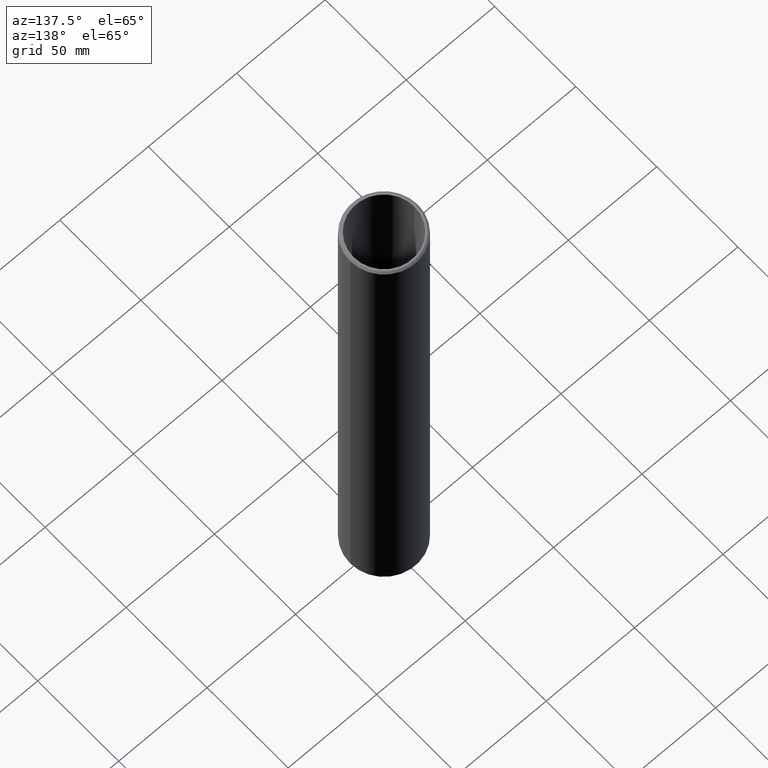
[diagram: clean part render]
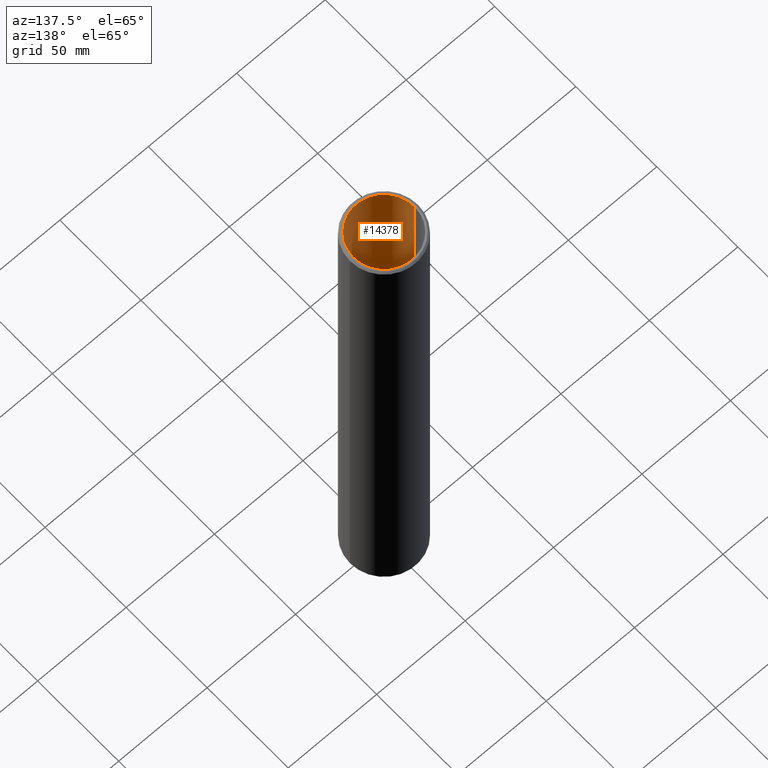
[diagram: same view with one face highlighted and labeled with its STEP entity id]
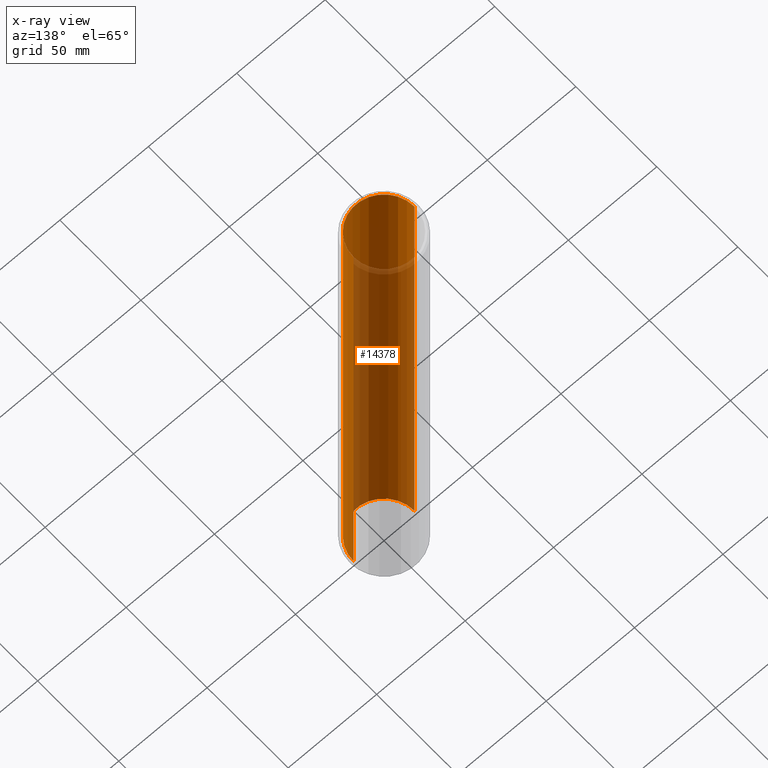
[diagram: x-ray of the same camera — body ghosted, the highlighted face saturated]
A machine part, auxiliary view. The second image highlights one B-rep face of the part: STEP entity #14378.
The next image is the same camera in x-ray: the body ghosted, the highlighted face saturated — about 65% of this face is hidden behind the body in this view.
In plain terms, the highlighted cylindrical surface (partial cylindrical patch) has radius 17.2 mm, axis along (-0, -0, -1).
Its self-contained STEP definition (entity closure, byte-faithful):
#10 = VERTEX_POINT ( 'NONE', #2546 ) ;
#23 = ORIENTED_EDGE ( 'NONE', *, *, #6961, .T. ) ;
#45 = ORIENTED_EDGE ( 'NONE', *, *, #8505, .F. ) ;
#59 = LINE ( 'NONE', #1891, #5661 ) ;
#66 = CARTESIAN_POINT ( 'NONE',  ( -17.19999999999999900, -6.751777973111649000E-013, -1.884475893939244800 ) ) ;
#96 = EDGE_CURVE ( 'NONE', #5512, #9341, #8298, .T. ) ;
#126 = VERTEX_POINT ( 'NONE', #11894 ) ;
#132 = CARTESIAN_POINT ( 'NONE',  ( -17.19999999999999900, 0.0000000000000000000, 6.962272970085531500 ) ) ;
#164 = B_SPLINE_CURVE_WITH_KNOTS ( 'NONE', 3,
 ( #11460, #3708, #4714, #6995 ),
 .UNSPECIFIED., .F., .F.,
 ( 4, 4 ),
 ( 0.0000000000000000000, 0.0001645194095886679000 ),
 .UNSPECIFIED. ) ;
#171 = VERTEX_POINT ( 'NONE', #5241 ) ;
#199 = ORIENTED_EDGE ( 'NONE', *, *, #13242, .T. ) ;
#201 = VECTOR ( 'NONE', #12343, 1000.000000000000000 ) ;
#247 = CARTESIAN_POINT ( 'NONE',  ( -17.19999999999999200, 5.573428617934421100E-012, 8.000412471161414600 ) ) ;
#287 = CARTESIAN_POINT ( 'NONE',  ( -17.19999999999999900, 0.0000000000000000000, 2.264222756410313700 ) ) ;
#297 = CARTESIAN_POINT ( 'NONE',  ( -17.19999285777112500, -0.01572333097396916300, 7.911512519285377500 ) ) ;
#328 = VERTEX_POINT ( 'NONE', #4259 ) ;
#347 = CARTESIAN_POINT ( 'NONE',  ( -17.20000000000000600, -0.02309534533612205000, -1.934273620241504100 ) ) ;
#353 = VERTEX_POINT ( 'NONE', #14221 ) ;
#370 = CARTESIAN_POINT ( 'NONE',  ( -17.19996655141567400, -0.03392094017094016800, -2.045061682024499100 ) ) ;
#373 = VECTOR ( 'NONE', #2807, 1000.000000000000000 ) ;
#408 = EDGE_CURVE ( 'NONE', #5282, #14198, #565, .T. ) ;
#427 = VERTEX_POINT ( 'NONE', #5486 ) ;
#440 = VERTEX_POINT ( 'NONE', #66 ) ;
#460 = VERTEX_POINT ( 'NONE', #13398 ) ;
#473 = EDGE_CURVE ( 'NONE', #5150, #3486, #1433, .T. ) ;
#527 = CARTESIAN_POINT ( 'NONE',  ( -17.19999999999999900, 0.0000000000000000000, 6.419537927350489800 ) ) ;
#529 = CARTESIAN_POINT ( 'NONE',  ( -17.19999999999999200, -4.678120616038137400E-014, 7.728009957598170700 ) ) ;
#562 = VECTOR ( 'NONE', #14282, 1000.000000000000000 ) ;
#565 = CIRCLE ( 'NONE', #4294, 17.19999999999999900 ) ;
#568 = VERTEX_POINT ( 'NONE', #12837 ) ;
#587 = LINE ( 'NONE', #12606, #12076 ) ;
#591 = CARTESIAN_POINT ( 'NONE',  ( -17.19999163786001600, -0.01696047008547008800, 9.444066756810947500 ) ) ;
#618 = CARTESIAN_POINT ( 'NONE',  ( -17.19996815175935000, -0.03310946921701064800, -9.427729188836478300 ) ) ;
#640 = CIRCLE ( 'NONE', #10967, 17.19999999999999900 ) ;
#650 = CARTESIAN_POINT ( 'NONE',  ( -17.19999999999999900, -0.02204698858159575800, -10.50082307081111200 ) ) ;
#661 = CARTESIAN_POINT ( 'NONE',  ( -17.19999999999999900, 0.0000000000000000000, 150.0000000000000000 ) ) ;
#742 = CARTESIAN_POINT ( 'NONE',  ( -17.19996839924588300, -0.03298397858883979300, -9.316524929275726000 ) ) ;
#838 = EDGE_CURVE ( 'NONE', #14198, #8005, #4734, .T. ) ;
#853 = VERTEX_POINT ( 'NONE', #8999 ) ;
#889 = CARTESIAN_POINT ( 'NONE',  ( -17.19999999999999900, 0.0000000000000000000, 150.0000000000000000 ) ) ;
#896 = DIRECTION ( 'NONE',  ( 0.0000000000000000000, 0.0000000000000000000, 1.000000000000000000 ) ) ;
#898 = CARTESIAN_POINT ( 'NONE',  ( -17.19999999999999900, 0.0000000000000000000, 6.300814636752194900 ) ) ;
#912 = EDGE_CURVE ( 'NONE', #9768, #12924, #1418, .T. ) ;
#967 = VERTEX_POINT ( 'NONE', #2680 ) ;
#1019 = EDGE_CURVE ( 'NONE', #7067, #4531, #4635, .T. ) ;
#1057 = ORIENTED_EDGE ( 'NONE', *, *, #9153, .T. ) ;
#1081 = CARTESIAN_POINT ( 'NONE',  ( -17.19999999999999900, 0.0000000000000000000, 2.993522970085538100 ) ) ;
#1145 = CARTESIAN_POINT ( 'NONE',  ( -17.19999999999999900, 0.0000000000000000000, 150.0000000000000000 ) ) ;
#1169 = ORIENTED_EDGE ( 'NONE', *, *, #14397, .T. ) ;
#1256 = CARTESIAN_POINT ( 'NONE',  ( -17.19999999999999900, 0.0000000000000000000, 150.0000000000000000 ) ) ;
#1268 = LINE ( 'NONE', #8189, #11001 ) ;
#1277 = VECTOR ( 'NONE', #4909, 1000.000000000000000 ) ;
#1342 = VERTEX_POINT ( 'NONE', #12037 ) ;
#1351 = ORIENTED_EDGE ( 'NONE', *, *, #13579, .F. ) ;
#1357 = CARTESIAN_POINT ( 'NONE',  ( -17.19999999999999900, 0.0000000000000000000, 150.0000000000000000 ) ) ;
#1385 = EDGE_CURVE ( 'NONE', #4673, #171, #13055, .T. ) ;
#1418 = LINE ( 'NONE', #3356, #7682 ) ;
#1433 = LINE ( 'NONE', #1256, #12219 ) ;
#1437 = ORIENTED_EDGE ( 'NONE', *, *, #6624, .T. ) ;
#1445 = LINE ( 'NONE', #661, #1277 ) ;
#1467 = LINE ( 'NONE', #10215, #11215 ) ;
#1474 = EDGE_CURVE ( 'NONE', #126, #3194, #11140, .T. ) ;
#1479 = B_SPLINE_CURVE_WITH_KNOTS ( 'NONE', 3,
 ( #9210, #5908, #347, #4634 ),
 .UNSPECIFIED., .F., .F.,
 ( 4, 4 ),
 ( 0.0000000000000000000, 0.0001645194095886683400 ),
 .UNSPECIFIED. ) ;
#1495 = EDGE_CURVE ( 'NONE', #328, #9597, #11339, .T. ) ;
#1500 = B_SPLINE_CURVE_WITH_KNOTS ( 'NONE', 3,
 ( #6689, #9988, #3185, #5417 ),
 .UNSPECIFIED., .F., .F.,
 ( 4, 4 ),
 ( 0.0000000000000000000, 0.0001713056969255015600 ),
 .UNSPECIFIED. ) ;
#1521 = CARTESIAN_POINT ( 'NONE',  ( -17.19999285777112500, -0.01572333097396876700, 4.943430254328143600 ) ) ;
#1569 = ORIENTED_EDGE ( 'NONE', *, *, #8003, .T. ) ;
#1574 = EDGE_CURVE ( 'NONE', #2214, #5574, #8381, .T. ) ;
#1583 = CARTESIAN_POINT ( 'NONE',  ( -17.19999999999999900, 0.0000000000000000000, 150.0000000000000000 ) ) ;
#1597 = EDGE_CURVE ( 'NONE', #11983, #171, #14335, .T. ) ;
#1623 = CARTESIAN_POINT ( 'NONE',  ( -17.19996655141567400, -0.03392094017094016800, -10.38961296407583900 ) ) ;
#1634 = CARTESIAN_POINT ( 'NONE',  ( -17.19999999999999900, 0.0000000000000000000, -150.0000000000000000 ) ) ;
#1650 = LINE ( 'NONE', #1583, #2352 ) ;
#1753 = ORIENTED_EDGE ( 'NONE', *, *, #7246, .F. ) ;
#1764 = EDGE_CURVE ( 'NONE', #9909, #10235, #10687, .T. ) ;
#1778 = DIRECTION ( 'NONE',  ( -0.0000000000000000000, -0.0000000000000000000, -1.000000000000000000 ) ) ;
#1783 = CARTESIAN_POINT ( 'NONE',  ( -17.19999271178686200, -0.01587137687797412300, 7.819208660451585600 ) ) ;
#1826 = ORIENTED_EDGE ( 'NONE', *, *, #408, .T. ) ;
#1891 = CARTESIAN_POINT ( 'NONE',  ( -17.19999999999999900, 0.0000000000000000000, 150.0000000000000000 ) ) ;
#2000 = CARTESIAN_POINT ( 'NONE',  ( -17.19996655141567400, -0.03392094017094016800, -9.371984758947624200 ) ) ;
#2049 = EDGE_CURVE ( 'NONE', #1342, #12550, #12368, .T. ) ;
#2131 = LINE ( 'NONE', #12830, #11378 ) ;
#2196 = ORIENTED_EDGE ( 'NONE', *, *, #5136, .F. ) ;
#2214 = VERTEX_POINT ( 'NONE', #8553 ) ;
#2239 = CARTESIAN_POINT ( 'NONE',  ( -17.19996655141567400, -0.03392094017094016800, -0.009805271768084589800 ) ) ;
#2268 = CARTESIAN_POINT ( 'NONE',  ( -17.19999999999999900, 0.0000000000000000000, 3.383613782051345400 ) ) ;
#2316 = VERTEX_POINT ( 'NONE', #2872 ) ;
#2352 = VECTOR ( 'NONE', #6216, 1000.000000000000000 ) ;
#2367 = B_SPLINE_CURVE_WITH_KNOTS ( 'NONE', 3,
 ( #529, #3820, #1783, #12687 ),
 .UNSPECIFIED., .F., .F.,
 ( 4, 4 ),
 ( 0.0003122496410272481700, 0.0004517219168809325400 ),
 .UNSPECIFIED. ) ;
#2461 = B_SPLINE_CURVE_WITH_KNOTS ( 'NONE', 3,
 ( #11884, #11835, #8690, #2906 ),
 .UNSPECIFIED., .F., .F.,
 ( 4, 4 ),
 ( 0.0000000000000000000, 0.0001866059247257123000 ),
 .UNSPECIFIED. ) ;
#2465 = LINE ( 'NONE', #1357, #4923 ) ;
#2475 = VECTOR ( 'NONE', #6246, 1000.000000000000000 ) ;
#2481 = VERTEX_POINT ( 'NONE', #14316 ) ;
#2482 = CARTESIAN_POINT ( 'NONE',  ( -17.20000000000000600, -6.751540803886417800E-013, -6.565565637529021900 ) ) ;
#2493 = ORIENTED_EDGE ( 'NONE', *, *, #13324, .T. ) ;
#2494 = VECTOR ( 'NONE', #13826, 1000.000000000000000 ) ;
#2507 = EDGE_CURVE ( 'NONE', #460, #3353, #11498, .T. ) ;
#2546 = CARTESIAN_POINT ( 'NONE',  ( -17.19999999999999900, 0.0000000000000000000, -6.012486645299103000 ) ) ;
#2549 = CARTESIAN_POINT ( 'NONE',  ( -17.19999999999999900, 0.0000000000000000000, 150.0000000000000000 ) ) ;
#2557 = VERTEX_POINT ( 'NONE', #12337 ) ;
#2619 = VECTOR ( 'NONE', #9845, 1000.000000000000000 ) ;
#2662 = VECTOR ( 'NONE', #7933, 1000.000000000000000 ) ;
#2666 = EDGE_CURVE ( 'NONE', #13956, #7025, #8539, .T. ) ;
#2668 = CARTESIAN_POINT ( 'NONE',  ( -17.19999999999999900, 0.0000000000000000000, 150.0000000000000000 ) ) ;
#2680 = CARTESIAN_POINT ( 'NONE',  ( -17.19999999999999200, 5.585038898542435800E-012, 5.032330206204210100 ) ) ;
#2683 = CARTESIAN_POINT ( 'NONE',  ( -17.19996655141567400, -0.03392094017094016800, -6.726151425614275100 ) ) ;
#2693 = LINE ( 'NONE', #4379, #12617 ) ;
#2701 = ORIENTED_EDGE ( 'NONE', *, *, #1764, .T. ) ;
#2717 = CARTESIAN_POINT ( 'NONE',  ( -17.19996655141567400, -0.03392094017094016800, -10.38961296407583900 ) ) ;
#2738 = CARTESIAN_POINT ( 'NONE',  ( -17.19999999999999900, 0.0000000000000000000, 150.0000000000000000 ) ) ;
#2807 = DIRECTION ( 'NONE',  ( -0.0000000000000000000, -0.0000000000000000000, -1.000000000000000000 ) ) ;
#2855 = CARTESIAN_POINT ( 'NONE',  ( -17.19999999999999900, -3.163668057994811800E-016, -0.1712283461435425400 ) ) ;
#2861 = VERTEX_POINT ( 'NONE', #6393 ) ;
#2865 = EDGE_CURVE ( 'NONE', #3615, #6061, #1500, .T. ) ;
#2869 = VECTOR ( 'NONE', #4435, 1000.000000000000000 ) ;
#2872 = CARTESIAN_POINT ( 'NONE',  ( -17.19999999999999900, 0.0000000000000000000, 2.145499465812022800 ) ) ;
#2906 = CARTESIAN_POINT ( 'NONE',  ( -17.19999999999999900, -5.264479173774927500E-014, -8.169909270066655800 ) ) ;
#2911 = VERTEX_POINT ( 'NONE', #10422 ) ;
#3115 = EDGE_CURVE ( 'NONE', #353, #2861, #8526, .T. ) ;
#3147 = DIRECTION ( 'NONE',  ( -0.0000000000000000000, -0.0000000000000000000, -1.000000000000000000 ) ) ;
#3168 = CARTESIAN_POINT ( 'NONE',  ( -17.19999999999999900, -3.163668057994811800E-016, -0.1712283461435425400 ) ) ;
#3185 = CARTESIAN_POINT ( 'NONE',  ( -17.20000000000001000, -0.02343688045399171600, 1.144817360246057600 ) ) ;
#3194 = VERTEX_POINT ( 'NONE', #5750 ) ;
#3253 = DIRECTION ( 'NONE',  ( -0.0000000000000000000, -0.0000000000000000000, -1.000000000000000000 ) ) ;
#3295 = DIRECTION ( 'NONE',  ( -0.0000000000000000000, -0.0000000000000000000, -1.000000000000000000 ) ) ;
#3312 = CARTESIAN_POINT ( 'NONE',  ( -17.19999999999999900, -0.02326279581355656500, -8.480818429887129600 ) ) ;
#3353 = VERTEX_POINT ( 'NONE', #3765 ) ;
#3356 = CARTESIAN_POINT ( 'NONE',  ( -17.19999999999999900, 0.0000000000000000000, 150.0000000000000000 ) ) ;
#3416 = CARTESIAN_POINT ( 'NONE',  ( -17.19999999999999900, 0.0000000000000000000, 10.74445779914534600 ) ) ;
#3486 = VERTEX_POINT ( 'NONE', #10820 ) ;
#3506 = LINE ( 'NONE', #12153, #562 ) ;
#3511 = ORIENTED_EDGE ( 'NONE', *, *, #12418, .F. ) ;
#3615 = VERTEX_POINT ( 'NONE', #11023 ) ;
#3696 = LINE ( 'NONE', #8775, #13783 ) ;
#3708 = CARTESIAN_POINT ( 'NONE',  ( -17.19996839924588300, -0.03298397858883977300, -6.670691595942378700 ) ) ;
#3756 = CARTESIAN_POINT ( 'NONE',  ( -17.19999999999999900, 0.0000000000000000000, 150.0000000000000000 ) ) ;
#3765 = CARTESIAN_POINT ( 'NONE',  ( -17.19999163786001600, -0.01696047008547008400, 4.897865751869723300 ) ) ;
#3820 = CARTESIAN_POINT ( 'NONE',  ( -17.19999999999998900, -0.01155977357769780900, 7.772905841796536200 ) ) ;
#3854 = CARTESIAN_POINT ( 'NONE',  ( -17.19996815175934300, -0.03310946921701049500, -10.44535739396469700 ) ) ;
#3927 = ORIENTED_EDGE ( 'NONE', *, *, #14264, .T. ) ;
#3931 = ORIENTED_EDGE ( 'NONE', *, *, #96, .T. ) ;
#3934 = CARTESIAN_POINT ( 'NONE',  ( -17.19999274129229900, -0.01584145475481876800, 9.492002433967787300 ) ) ;
#3992 = ORIENTED_EDGE ( 'NONE', *, *, #12477, .T. ) ;
#4080 = EDGE_CURVE ( 'NONE', #10, #10356, #11492, .T. ) ;
#4116 = VECTOR ( 'NONE', #4450, 1000.000000000000000 ) ;
#4165 = ORIENTED_EDGE ( 'NONE', *, *, #2666, .T. ) ;
#4259 = CARTESIAN_POINT ( 'NONE',  ( -17.19999999999999900, 0.0000000000000000000, 7.352363782051341400 ) ) ;
#4279 = CARTESIAN_POINT ( 'NONE',  ( -17.19999999999999900, 0.0000000000000000000, 4.503004807692372300 ) ) ;
#4294 = AXIS2_PLACEMENT_3D ( 'NONE', #4509, #12245, #10203 ) ;
#4302 = LINE ( 'NONE', #10242, #12844 ) ;
#4368 = EDGE_CURVE ( 'NONE', #2557, #12550, #10946, .T. ) ;
#4369 = CARTESIAN_POINT ( 'NONE',  ( -17.19999999999999900, 0.0000000000000000000, 150.0000000000000000 ) ) ;
#4379 = CARTESIAN_POINT ( 'NONE',  ( -17.19999999999999900, 0.0000000000000000000, 150.0000000000000000 ) ) ;
#4408 = CARTESIAN_POINT ( 'NONE',  ( -17.19996655141567400, -0.03392094017094016800, -0.009805271768084589800 ) ) ;
#4435 = DIRECTION ( 'NONE',  ( -0.0000000000000000000, -0.0000000000000000000, -1.000000000000000000 ) ) ;
#4450 = DIRECTION ( 'NONE',  ( 0.0000000000000000000, 0.0000000000000000000, 1.000000000000000000 ) ) ;
#4451 = CARTESIAN_POINT ( 'NONE',  ( -17.19999999999998900, -4.698851747422185800E-014, 4.759927692640924400 ) ) ;
#4505 = CARTESIAN_POINT ( 'NONE',  ( -17.19999271178686200, -0.01587137687797410600, 4.851126395494338400 ) ) ;
#4509 = CARTESIAN_POINT ( 'NONE',  ( 0.0000000000000000000, 0.0000000000000000000, 150.0000000000000000 ) ) ;
#4511 = CARTESIAN_POINT ( 'NONE',  ( -17.19996655141567400, -0.03392094017094016800, -8.353296524439061300 ) ) ;
#4531 = VERTEX_POINT ( 'NONE', #8139 ) ;
#4568 = CARTESIAN_POINT ( 'NONE',  ( -17.19999999999999200, -0.02309534533612236200, 0.1009827900149115100 ) ) ;
#4633 = VERTEX_POINT ( 'NONE', #11904 ) ;
#4634 = CARTESIAN_POINT ( 'NONE',  ( -17.19999999999999900, -6.751777973111649000E-013, -1.884475893939244800 ) ) ;
#4635 = B_SPLINE_CURVE_WITH_KNOTS ( 'NONE', 3,
 ( #4898, #11456, #13763, #370 ),
 .UNSPECIFIED., .F., .F.,
 ( 4, 4 ),
 ( 0.0007601452019977660000, 0.0009231551795491606300 ),
 .UNSPECIFIED. ) ;
#4665 = DIRECTION ( 'NONE',  ( -0.0000000000000000000, -0.0000000000000000000, -1.000000000000000000 ) ) ;
#4673 = VERTEX_POINT ( 'NONE', #9669 ) ;
#4709 = ORIENTED_EDGE ( 'NONE', *, *, #5813, .T. ) ;
#4714 = CARTESIAN_POINT ( 'NONE',  ( -17.20000000000000600, -0.02309534533612032200, -6.615363363831281900 ) ) ;
#4734 = LINE ( 'NONE', #7971, #201 ) ;
#4788 = EDGE_CURVE ( 'NONE', #427, #10723, #9706, .T. ) ;
#4898 = CARTESIAN_POINT ( 'NONE',  ( -17.19999999999999900, -3.521539478209753700E-016, -2.206484756399957400 ) ) ;
#4909 = DIRECTION ( 'NONE',  ( 0.0000000000000000000, 0.0000000000000000000, 1.000000000000000000 ) ) ;
#4923 = VECTOR ( 'NONE', #9012, 1000.000000000000000 ) ;
#4995 = CARTESIAN_POINT ( 'NONE',  ( -17.19999999999999900, 0.0000000000000000000, 150.0000000000000000 ) ) ;
#5051 = ORIENTED_EDGE ( 'NONE', *, *, #4080, .F. ) ;
#5113 = CARTESIAN_POINT ( 'NONE',  ( 17.19999999999999900, 2.106392494533447400E-015, 150.0000000000000000 ) ) ;
#5117 = LINE ( 'NONE', #5944, #2494 ) ;
#5136 = EDGE_CURVE ( 'NONE', #9909, #14195, #6097, .T. ) ;
#5148 = ORIENTED_EDGE ( 'NONE', *, *, #7417, .T. ) ;
#5149 = CARTESIAN_POINT ( 'NONE',  ( -17.19996655141567400, -0.03392094017094016800, -9.371984758947624200 ) ) ;
#5150 = VERTEX_POINT ( 'NONE', #6460 ) ;
#5183 = DIRECTION ( 'NONE',  ( -0.0000000000000000000, -0.0000000000000000000, -1.000000000000000000 ) ) ;
#5230 = ORIENTED_EDGE ( 'NONE', *, *, #6241, .T. ) ;
#5231 = CARTESIAN_POINT ( 'NONE',  ( -17.19999999999999900, -5.252190843292635700E-013, 1.197160463311442800 ) ) ;
#5241 = CARTESIAN_POINT ( 'NONE',  ( -17.19999999999999900, 7.816639736433377600E-012, 9.585322993598554200 ) ) ;
#5255 = DIRECTION ( 'NONE',  ( -0.0000000000000000000, -0.0000000000000000000, -1.000000000000000000 ) ) ;
#5268 = CARTESIAN_POINT ( 'NONE',  ( -17.19999999999999900, 3.287546626530753200E-017, 0.8426784211193761900 ) ) ;
#5282 = VERTEX_POINT ( 'NONE', #11568 ) ;
#5327 = CARTESIAN_POINT ( 'NONE',  ( -17.19996655141567400, -0.03392094017094016800, -9.371984758947624200 ) ) ;
#5338 = ORIENTED_EDGE ( 'NONE', *, *, #13155, .F. ) ;
#5417 = CARTESIAN_POINT ( 'NONE',  ( -17.19999999999999900, -5.252190843292635700E-013, 1.197160463311442800 ) ) ;
#5486 = CARTESIAN_POINT ( 'NONE',  ( -17.19999999999999900, -1.956434349920620200E-015, -8.539573809655815100 ) ) ;
#5505 = VERTEX_POINT ( 'NONE', #12010 ) ;
#5510 = DIRECTION ( 'NONE',  ( -0.0000000000000000000, -0.0000000000000000000, -1.000000000000000000 ) ) ;
#5512 = VERTEX_POINT ( 'NONE', #10980 ) ;
#5574 = VERTEX_POINT ( 'NONE', #2268 ) ;
#5597 = CARTESIAN_POINT ( 'NONE',  ( -17.19999999999999900, 0.0000000000000000000, 4.112913995726552600 ) ) ;
#5608 = VERTEX_POINT ( 'NONE', #5597 ) ;
#5650 = AXIS2_PLACEMENT_3D ( 'NONE', #13505, #12407, #5695 ) ;
#5661 = VECTOR ( 'NONE', #5510, 1000.000000000000000 ) ;
#5695 = DIRECTION ( 'NONE',  ( -1.000000000000000000, 0.0000000000000000000, 0.0000000000000000000 ) ) ;
#5708 = VERTEX_POINT ( 'NONE', #3416 ) ;
#5744 = CARTESIAN_POINT ( 'NONE',  ( -17.19997016515581100, -0.03208855553695756600, -8.416886645584998700 ) ) ;
#5747 = ORIENTED_EDGE ( 'NONE', *, *, #14058, .T. ) ;
#5750 = CARTESIAN_POINT ( 'NONE',  ( -17.20000000000000600, -6.755212691712765200E-013, -10.22902717599058400 ) ) ;
#5786 = CARTESIAN_POINT ( 'NONE',  ( -17.19999999999999900, 0.0000000000000000000, -3.366653311965755800 ) ) ;
#5807 = ORIENTED_EDGE ( 'NONE', *, *, #13284, .T. ) ;
#5813 = EDGE_CURVE ( 'NONE', #10531, #10356, #164, .T. ) ;
#5821 = CARTESIAN_POINT ( 'NONE',  ( 17.19999999999999900, 2.106392494533447400E-015, -150.0000000000000000 ) ) ;
#5908 = CARTESIAN_POINT ( 'NONE',  ( -17.19996839924588300, -0.03298397858883980000, -1.989601852352602200 ) ) ;
#5934 = DIRECTION ( 'NONE',  ( 0.0000000000000000000, 0.0000000000000000000, 1.000000000000000000 ) ) ;
#5944 = CARTESIAN_POINT ( 'NONE',  ( -17.19999999999999900, 0.0000000000000000000, 150.0000000000000000 ) ) ;
#5966 = CARTESIAN_POINT ( 'NONE',  ( -17.19999999999999200, -0.02342409901532157100, 0.9018129734785279600 ) ) ;
#5972 = CARTESIAN_POINT ( 'NONE',  ( -17.20000000000000600, -6.755212691712765200E-013, -10.22902717599058400 ) ) ;
#6004 = CARTESIAN_POINT ( 'NONE',  ( -17.19999999999998900, -8.944667923005409600E-016, -9.533407833323078500 ) ) ;
#6047 = CARTESIAN_POINT ( 'NONE',  ( -17.20000000000000600, -0.02204698858160193000, -9.483194865682900600 ) ) ;
#6061 = VERTEX_POINT ( 'NONE', #5231 ) ;
#6097 = LINE ( 'NONE', #14263, #8878 ) ;
#6107 = ORIENTED_EDGE ( 'NONE', *, *, #8876, .T. ) ;
#6185 = ORIENTED_EDGE ( 'NONE', *, *, #1597, .T. ) ;
#6216 = DIRECTION ( 'NONE',  ( -0.0000000000000000000, -0.0000000000000000000, -1.000000000000000000 ) ) ;
#6227 = LINE ( 'NONE', #11075, #12663 ) ;
#6237 = EDGE_CURVE ( 'NONE', #2214, #5608, #7418, .T. ) ;
#6241 = EDGE_CURVE ( 'NONE', #12700, #12623, #4302, .T. ) ;
#6246 = DIRECTION ( 'NONE',  ( 0.0000000000000000000, 0.0000000000000000000, 1.000000000000000000 ) ) ;
#6250 = ORIENTED_EDGE ( 'NONE', *, *, #1019, .T. ) ;
#6288 = ORIENTED_EDGE ( 'NONE', *, *, #14331, .F. ) ;
#6319 = VECTOR ( 'NONE', #12786, 1000.000000000000000 ) ;
#6325 = CARTESIAN_POINT ( 'NONE',  ( -17.19999999999999900, -0.02204698858159849200, -0.1210153785033625100 ) ) ;
#6393 = CARTESIAN_POINT ( 'NONE',  ( -17.19999999999999900, -5.264479173774927500E-014, -8.169909270066655800 ) ) ;
#6458 = ORIENTED_EDGE ( 'NONE', *, *, #9245, .T. ) ;
#6460 = CARTESIAN_POINT ( 'NONE',  ( -17.19999999999999200, -4.678120616038137400E-014, 7.728009957598170700 ) ) ;
#6464 = CARTESIAN_POINT ( 'NONE',  ( -17.19999999999999900, -0.02309534533611957600, -9.261196697164630000 ) ) ;
#6474 = CARTESIAN_POINT ( 'NONE',  ( -17.19996815175932500, -0.03310946921701071000, -0.06554970165694121200 ) ) ;
#6481 = CARTESIAN_POINT ( 'NONE',  ( -17.19999999999999200, -0.01203960420615164700, 9.347380177793795000 ) ) ;
#6486 = B_SPLINE_CURVE_WITH_KNOTS ( 'NONE', 3,
 ( #7251, #5966, #9310, #7425 ),
 .UNSPECIFIED., .F., .F.,
 ( 4, 4 ),
 ( 0.0005408975862354501900, 0.0007297829456328082800 ),
 .UNSPECIFIED. ) ;
#6501 = B_SPLINE_CURVE_WITH_KNOTS ( 'NONE', 3,
 ( #4408, #10062, #4568, #10114 ),
 .UNSPECIFIED., .F., .F.,
 ( 4, 4 ),
 ( 3.388131789017201400E-021, 0.0001645194095886686600 ),
 .UNSPECIFIED. ) ;
#6577 = CARTESIAN_POINT ( 'NONE',  ( -17.19999999999999900, 0.0000000000000000000, 150.0000000000000000 ) ) ;
#6587 = LINE ( 'NONE', #11291, #8847 ) ;
#6624 = EDGE_CURVE ( 'NONE', #1342, #5505, #6587, .T. ) ;
#6676 = CARTESIAN_POINT ( 'NONE',  ( -17.19999999999999900, 0.0000000000000000000, -4.248597756410194200 ) ) ;
#6689 = CARTESIAN_POINT ( 'NONE',  ( -17.19996655141567400, -0.03392094017094016800, 1.029553535657147000 ) ) ;
#6703 = CARTESIAN_POINT ( 'NONE',  ( -17.19999163786001600, -0.01696047008547008400, 4.897865751869723300 ) ) ;
#6707 = CARTESIAN_POINT ( 'NONE',  ( -17.20000000000000600, -1.064508127066250000E-013, 9.300726036559963100 ) ) ;
#6716 = CARTESIAN_POINT ( 'NONE',  ( -17.19999999999999900, -1.956434349920620200E-015, -8.539573809655815100 ) ) ;
#6752 = ORIENTED_EDGE ( 'NONE', *, *, #6894, .F. ) ;
#6772 = B_SPLINE_CURVE_WITH_KNOTS ( 'NONE', 3,
 ( #12571, #1521, #7106, #7208 ),
 .UNSPECIFIED., .F., .F.,
 ( 4, 4 ),
 ( 0.0000000000000000000, 0.0001354148054460180800 ),
 .UNSPECIFIED. ) ;
#6791 = VERTEX_POINT ( 'NONE', #1634 ) ;
#6881 = DIRECTION ( 'NONE',  ( -0.0000000000000000000, -0.0000000000000000000, -1.000000000000000000 ) ) ;
#6894 = EDGE_CURVE ( 'NONE', #6791, #8005, #640, .T. ) ;
#6924 = CARTESIAN_POINT ( 'NONE',  ( -17.19999999999999200, -0.01147758811715098500, 7.956570846784177100 ) ) ;
#6961 = EDGE_CURVE ( 'NONE', #9341, #2481, #7829, .T. ) ;
#6995 = CARTESIAN_POINT ( 'NONE',  ( -17.20000000000000600, -6.751540803886417800E-013, -6.565565637529021900 ) ) ;
#6996 = EDGE_CURVE ( 'NONE', #13956, #967, #6227, .T. ) ;
#7003 = ORIENTED_EDGE ( 'NONE', *, *, #838, .T. ) ;
#7025 = VERTEX_POINT ( 'NONE', #12049 ) ;
#7030 = EDGE_CURVE ( 'NONE', #8415, #7595, #9182, .T. ) ;
#7067 = VERTEX_POINT ( 'NONE', #7661 ) ;
#7070 = DIRECTION ( 'NONE',  ( 0.0000000000000000000, 0.0000000000000000000, 1.000000000000000000 ) ) ;
#7075 = CARTESIAN_POINT ( 'NONE',  ( -17.19999999999999900, -1.990527426047605800E-017, -10.55103603845129500 ) ) ;
#7089 = ORIENTED_EDGE ( 'NONE', *, *, #13093, .T. ) ;
#7106 = CARTESIAN_POINT ( 'NONE',  ( -17.20000000000000300, -0.01147758811714729200, 4.988488581826958400 ) ) ;
#7116 = CARTESIAN_POINT ( 'NONE',  ( -17.19999999999999900, 0.0000000000000000000, -3.247930021367452000 ) ) ;
#7158 = DIRECTION ( 'NONE',  ( -0.0000000000000000000, -0.0000000000000000000, -1.000000000000000000 ) ) ;
#7188 = VECTOR ( 'NONE', #9763, 1000.000000000000000 ) ;
#7193 = CARTESIAN_POINT ( 'NONE',  ( -17.19996655141567400, -0.03392094017094016800, -6.726151425614275100 ) ) ;
#7208 = CARTESIAN_POINT ( 'NONE',  ( -17.19999999999999200, 5.585038898542435800E-012, 5.032330206204210100 ) ) ;
#7232 = CARTESIAN_POINT ( 'NONE',  ( -17.19999999999999900, 0.0000000000000000000, 150.0000000000000000 ) ) ;
#7246 = EDGE_CURVE ( 'NONE', #9768, #7595, #13164, .T. ) ;
#7251 = CARTESIAN_POINT ( 'NONE',  ( -17.19999999999999900, 3.287546626530753200E-017, 0.8426784211193761900 ) ) ;
#7290 = VERTEX_POINT ( 'NONE', #7858 ) ;
#7304 = CARTESIAN_POINT ( 'NONE',  ( -17.19999999999999900, 0.0000000000000000000, -5.147502670940107300 ) ) ;
#7417 = EDGE_CURVE ( 'NONE', #3353, #967, #6772, .T. ) ;
#7418 = LINE ( 'NONE', #10191, #14029 ) ;
#7425 = CARTESIAN_POINT ( 'NONE',  ( -17.19996655141567400, -0.03392094017094016800, 1.029553535657147000 ) ) ;
#7532 = LINE ( 'NONE', #9059, #2662 ) ;
#7564 = VECTOR ( 'NONE', #7630, 1000.000000000000000 ) ;
#7595 = VERTEX_POINT ( 'NONE', #6676 ) ;
#7630 = DIRECTION ( 'NONE',  ( -0.0000000000000000000, -0.0000000000000000000, -1.000000000000000000 ) ) ;
#7661 = CARTESIAN_POINT ( 'NONE',  ( -17.19999999999999900, -3.521539478209753700E-016, -2.206484756399957400 ) ) ;
#7682 = VECTOR ( 'NONE', #11175, 1000.000000000000000 ) ;
#7738 = ORIENTED_EDGE ( 'NONE', *, *, #10834, .F. ) ;
#7746 = LINE ( 'NONE', #3756, #7564 ) ;
#7775 = VECTOR ( 'NONE', #11305, 1000.000000000000000 ) ;
#7777 = CARTESIAN_POINT ( 'NONE',  ( -17.19996655141567400, -0.03392094017094016800, -8.353296524439061300 ) ) ;
#7829 = B_SPLINE_CURVE_WITH_KNOTS ( 'NONE', 3,
 ( #5327, #742, #6464, #8549 ),
 .UNSPECIFIED., .F., .F.,
 ( 4, 4 ),
 ( 0.0000000000000000000, 0.0001645194095886688500 ),
 .UNSPECIFIED. ) ;
#7858 = CARTESIAN_POINT ( 'NONE',  ( -17.19999999999999900, 0.0000000000000000000, 4.384281517094079200 ) ) ;
#7916 = EDGE_CURVE ( 'NONE', #5512, #3194, #10211, .T. ) ;
#7933 = DIRECTION ( 'NONE',  ( 0.0000000000000000000, 0.0000000000000000000, 1.000000000000000000 ) ) ;
#7971 = CARTESIAN_POINT ( 'NONE',  ( 17.19999999999999900, 2.106392494533447400E-015, 150.0000000000000000 ) ) ;
#8003 = EDGE_CURVE ( 'NONE', #568, #9477, #14375, .T. ) ;
#8005 = VERTEX_POINT ( 'NONE', #5821 ) ;
#8008 = ORIENTED_EDGE ( 'NONE', *, *, #912, .T. ) ;
#8139 = CARTESIAN_POINT ( 'NONE',  ( -17.19996655141567400, -0.03392094017094016800, -2.045061682024499100 ) ) ;
#8189 = CARTESIAN_POINT ( 'NONE',  ( -17.19999999999999900, 0.0000000000000000000, 150.0000000000000000 ) ) ;
#8211 = ORIENTED_EDGE ( 'NONE', *, *, #10921, .F. ) ;
#8236 = LINE ( 'NONE', #4369, #9107 ) ;
#8292 = VECTOR ( 'NONE', #5255, 1000.000000000000000 ) ;
#8298 = B_SPLINE_CURVE_WITH_KNOTS ( 'NONE', 3,
 ( #6004, #6047, #618, #5149 ),
 .UNSPECIFIED., .F., .F.,
 ( 4, 4 ),
 ( 0.0007601452019977683900, 0.0009231551795491613900 ),
 .UNSPECIFIED. ) ;
#8381 = LINE ( 'NONE', #10563, #373 ) ;
#8401 = CARTESIAN_POINT ( 'NONE',  ( -17.19996815175934300, -0.03310946921701073800, -6.781895855503131900 ) ) ;
#8411 = DIRECTION ( 'NONE',  ( -0.0000000000000000000, -0.0000000000000000000, -1.000000000000000000 ) ) ;
#8415 = VERTEX_POINT ( 'NONE', #7304 ) ;
#8479 = VERTEX_POINT ( 'NONE', #4279 ) ;
#8503 = CARTESIAN_POINT ( 'NONE',  ( 0.0000000000000000000, 0.0000000000000000000, -150.0000000000000000 ) ) ;
#8505 = EDGE_CURVE ( 'NONE', #7290, #5608, #9664, .T. ) ;
#8526 = LINE ( 'NONE', #6577, #13379 ) ;
#8527 = ORIENTED_EDGE ( 'NONE', *, *, #6996, .F. ) ;
#8539 = LINE ( 'NONE', #10388, #14078 ) ;
#8549 = CARTESIAN_POINT ( 'NONE',  ( -17.20000000000000600, -6.745689923803258700E-013, -9.211398970862367400 ) ) ;
#8553 = CARTESIAN_POINT ( 'NONE',  ( -17.19999999999999900, 0.0000000000000000000, 3.994190705128270100 ) ) ;
#8690 = CARTESIAN_POINT ( 'NONE',  ( -17.19999999999999900, -0.02383153898562240200, -8.228020397872859000 ) ) ;
#8716 = DIRECTION ( 'NONE',  ( -0.0000000000000000000, -0.0000000000000000000, -1.000000000000000000 ) ) ;
#8775 = CARTESIAN_POINT ( 'NONE',  ( -17.19999999999999900, 0.0000000000000000000, 150.0000000000000000 ) ) ;
#8812 = CARTESIAN_POINT ( 'NONE',  ( -17.20000000000000600, -1.064508127066250000E-013, 9.300726036559963100 ) ) ;
#8847 = VECTOR ( 'NONE', #12310, 1000.000000000000000 ) ;
#8876 = EDGE_CURVE ( 'NONE', #10235, #853, #6501, .T. ) ;
#8878 = VECTOR ( 'NONE', #3295, 1000.000000000000000 ) ;
#8964 = EDGE_CURVE ( 'NONE', #2911, #6791, #10009, .T. ) ;
#8999 = CARTESIAN_POINT ( 'NONE',  ( -17.20000000000000600, -6.751098229171477400E-013, 0.1507805163171701500 ) ) ;
#9012 = DIRECTION ( 'NONE',  ( 0.0000000000000000000, 0.0000000000000000000, 1.000000000000000000 ) ) ;
#9029 = ORIENTED_EDGE ( 'NONE', *, *, #4788, .T. ) ;
#9041 = DIRECTION ( 'NONE',  ( 0.0000000000000000000, 0.0000000000000000000, 1.000000000000000000 ) ) ;
#9059 = CARTESIAN_POINT ( 'NONE',  ( -17.19999999999999900, 0.0000000000000000000, 150.0000000000000000 ) ) ;
#9105 = CARTESIAN_POINT ( 'NONE',  ( -17.19999999999999200, 5.573428617934421100E-012, 8.000412471161414600 ) ) ;
#9107 = VECTOR ( 'NONE', #8716, 1000.000000000000000 ) ;
#9153 = EDGE_CURVE ( 'NONE', #2911, #126, #13248, .T. ) ;
#9158 = EDGE_CURVE ( 'NONE', #460, #8479, #1650, .T. ) ;
#9182 = LINE ( 'NONE', #1145, #4116 ) ;
#9188 = DIRECTION ( 'NONE',  ( -0.0000000000000000000, -0.0000000000000000000, -1.000000000000000000 ) ) ;
#9210 = CARTESIAN_POINT ( 'NONE',  ( -17.19996655141567400, -0.03392094017094016800, -2.045061682024499100 ) ) ;
#9245 = EDGE_CURVE ( 'NONE', #353, #10531, #13686, .T. ) ;
#9264 = DIRECTION ( 'NONE',  ( 0.0000000000000000000, 0.0000000000000000000, 1.000000000000000000 ) ) ;
#9310 = CARTESIAN_POINT ( 'NONE',  ( -17.19996769502842700, -0.03334105939266320700, 0.9655501744025477600 ) ) ;
#9319 = EDGE_CURVE ( 'NONE', #10723, #2861, #2461, .T. ) ;
#9341 = VERTEX_POINT ( 'NONE', #2000 ) ;
#9367 = CARTESIAN_POINT ( 'NONE',  ( -17.19996839924588300, -0.03298397858883996700, -10.33415313440394300 ) ) ;
#9389 = VERTEX_POINT ( 'NONE', #5268 ) ;
#9438 = ORIENTED_EDGE ( 'NONE', *, *, #14043, .F. ) ;
#9477 = VERTEX_POINT ( 'NONE', #1081 ) ;
#9584 = VECTOR ( 'NONE', #9688, 1000.000000000000000 ) ;
#9597 = VERTEX_POINT ( 'NONE', #12274 ) ;
#9654 = CARTESIAN_POINT ( 'NONE',  ( -17.19999999999999900, 0.0000000000000000000, 150.0000000000000000 ) ) ;
#9655 = DIRECTION ( 'NONE',  ( 1.000000000000000000, 0.0000000000000000000, 0.0000000000000000000 ) ) ;
#9664 = LINE ( 'NONE', #13078, #11074 ) ;
#9669 = CARTESIAN_POINT ( 'NONE',  ( -17.19999999999999900, 0.0000000000000000000, 10.62573450854703500 ) ) ;
#9688 = DIRECTION ( 'NONE',  ( -0.0000000000000000000, -0.0000000000000000000, -1.000000000000000000 ) ) ;
#9692 = EDGE_LOOP ( 'NONE', ( #1826, #7003, #6752, #10663, #1057, #9789, #10914, #3931, #23, #6288, #9029, #12377, #14450, #6458, #4709, #5051, #3992, #13890, #10052, #1753, #8008, #1351, #6250, #5747, #10004, #5807, #2196, #2701, #6107, #14224, #199, #12591, #9438, #1169, #7738, #1569, #12186, #12187, #12855, #13288, #45, #12993, #13387, #11526, #5148, #8527, #4165, #3511, #5230, #12785, #11830, #10888, #3927, #10264, #11892, #11448, #11629, #1437, #5338, #2493, #6185, #11781, #7089, #8211 ) ) ;
#9706 = B_SPLINE_CURVE_WITH_KNOTS ( 'NONE', 3,
 ( #6716, #3312, #5744, #7777 ),
 .UNSPECIFIED., .F., .F.,
 ( 4, 4 ),
 ( 0.0005040359667488664100, 0.0006930420298867466700 ),
 .UNSPECIFIED. ) ;
#9731 = DIRECTION ( 'NONE',  ( -0.0000000000000000000, -0.0000000000000000000, -1.000000000000000000 ) ) ;
#9763 = DIRECTION ( 'NONE',  ( 0.0000000000000000000, 0.0000000000000000000, 1.000000000000000000 ) ) ;
#9768 = VERTEX_POINT ( 'NONE', #5786 ) ;
#9789 = ORIENTED_EDGE ( 'NONE', *, *, #1474, .T. ) ;
#9808 = LINE ( 'NONE', #7232, #6319 ) ;
#9821 = VECTOR ( 'NONE', #10043, 1000.000000000000000 ) ;
#9845 = DIRECTION ( 'NONE',  ( -0.0000000000000000000, -0.0000000000000000000, -1.000000000000000000 ) ) ;
#9909 = VERTEX_POINT ( 'NONE', #2855 ) ;
#9935 = DIRECTION ( 'NONE',  ( -0.0000000000000000000, -0.0000000000000000000, -1.000000000000000000 ) ) ;
#9988 = CARTESIAN_POINT ( 'NONE',  ( -17.19996880443272500, -0.03277852437333282600, 1.087223808392981300 ) ) ;
#9994 = CARTESIAN_POINT ( 'NONE',  ( -17.19999999999999900, 0.0000000000000000000, 150.0000000000000000 ) ) ;
#10004 = ORIENTED_EDGE ( 'NONE', *, *, #12122, .F. ) ;
#10009 = LINE ( 'NONE', #2549, #13991 ) ;
#10043 = DIRECTION ( 'NONE',  ( -0.0000000000000000000, -0.0000000000000000000, -1.000000000000000000 ) ) ;
#10052 = ORIENTED_EDGE ( 'NONE', *, *, #7030, .T. ) ;
#10054 = CARTESIAN_POINT ( 'NONE',  ( -17.20000000000001000, -0.01155977357769613500, 4.804823576839291700 ) ) ;
#10062 = CARTESIAN_POINT ( 'NONE',  ( -17.19996839924588300, -0.03298397858883982100, 0.04565455790381250200 ) ) ;
#10111 = DIRECTION ( 'NONE',  ( -0.0000000000000000000, -0.0000000000000000000, -1.000000000000000000 ) ) ;
#10114 = CARTESIAN_POINT ( 'NONE',  ( -17.20000000000000600, -6.751098229171477400E-013, 0.1507805163171701500 ) ) ;
#10191 = CARTESIAN_POINT ( 'NONE',  ( -17.19999999999999900, 0.0000000000000000000, 150.0000000000000000 ) ) ;
#10196 = LINE ( 'NONE', #4995, #10365 ) ;
#10203 = DIRECTION ( 'NONE',  ( 1.000000000000000000, 0.0000000000000000000, 0.0000000000000000000 ) ) ;
#10211 = LINE ( 'NONE', #11157, #2869 ) ;
#10215 = CARTESIAN_POINT ( 'NONE',  ( -17.19999999999999900, 0.0000000000000000000, 150.0000000000000000 ) ) ;
#10228 = DIRECTION ( 'NONE',  ( -0.0000000000000000000, -0.0000000000000000000, -1.000000000000000000 ) ) ;
#10235 = VERTEX_POINT ( 'NONE', #2239 ) ;
#10242 = CARTESIAN_POINT ( 'NONE',  ( -17.19999999999999900, 0.0000000000000000000, 150.0000000000000000 ) ) ;
#10264 = ORIENTED_EDGE ( 'NONE', *, *, #473, .F. ) ;
#10356 = VERTEX_POINT ( 'NONE', #2482 ) ;
#10365 = VECTOR ( 'NONE', #5934, 1000.000000000000000 ) ;
#10388 = CARTESIAN_POINT ( 'NONE',  ( -17.19999999999999900, 0.0000000000000000000, 150.0000000000000000 ) ) ;
#10422 = CARTESIAN_POINT ( 'NONE',  ( -17.19999999999999900, -1.990527426047605800E-017, -10.55103603845129500 ) ) ;
#10431 = EDGE_CURVE ( 'NONE', #12684, #9477, #2693, .T. ) ;
#10531 = VERTEX_POINT ( 'NONE', #7193 ) ;
#10563 = CARTESIAN_POINT ( 'NONE',  ( -17.19999999999999900, 0.0000000000000000000, 150.0000000000000000 ) ) ;
#10663 = ORIENTED_EDGE ( 'NONE', *, *, #8964, .F. ) ;
#10687 = B_SPLINE_CURVE_WITH_KNOTS ( 'NONE', 3,
 ( #3168, #6325, #6474, #10981 ),
 .UNSPECIFIED., .F., .F.,
 ( 4, 4 ),
 ( 0.0007601452019977638300, 0.0009231551795491572700 ),
 .UNSPECIFIED. ) ;
#10723 = VERTEX_POINT ( 'NONE', #4511 ) ;
#10746 = CARTESIAN_POINT ( 'NONE',  ( -17.19999999999999900, 0.0000000000000000000, 150.0000000000000000 ) ) ;
#10797 = EDGE_CURVE ( 'NONE', #14372, #9597, #10196, .T. ) ;
#10820 = CARTESIAN_POINT ( 'NONE',  ( -17.19999999999999900, 0.0000000000000000000, 7.471087072649620400 ) ) ;
#10834 = EDGE_CURVE ( 'NONE', #568, #13509, #7746, .T. ) ;
#10844 = CARTESIAN_POINT ( 'NONE',  ( -17.19999999999999900, 0.0000000000000000000, 150.0000000000000000 ) ) ;
#10888 = ORIENTED_EDGE ( 'NONE', *, *, #1495, .F. ) ;
#10903 = CARTESIAN_POINT ( 'NONE',  ( -17.19999999999999900, 0.0000000000000000000, 150.0000000000000000 ) ) ;
#10914 = ORIENTED_EDGE ( 'NONE', *, *, #7916, .F. ) ;
#10921 = EDGE_CURVE ( 'NONE', #5282, #5708, #12618, .T. ) ;
#10946 = B_SPLINE_CURVE_WITH_KNOTS ( 'NONE', 3,
 ( #12467, #297, #6924, #247 ),
 .UNSPECIFIED., .F., .F.,
 ( 4, 4 ),
 ( 0.0000000000000000000, 0.0001354148054459737900 ),
 .UNSPECIFIED. ) ;
#10967 = AXIS2_PLACEMENT_3D ( 'NONE', #8503, #896, #9655 ) ;
#10980 = CARTESIAN_POINT ( 'NONE',  ( -17.19999999999998900, -8.944667923005409600E-016, -9.533407833323078500 ) ) ;
#10981 = CARTESIAN_POINT ( 'NONE',  ( -17.19996655141567400, -0.03392094017094016800, -0.009805271768084589800 ) ) ;
#10986 = CARTESIAN_POINT ( 'NONE',  ( -17.19999999999999900, 0.0000000000000000000, -5.893763354700802800 ) ) ;
#11001 = VECTOR ( 'NONE', #10228, 1000.000000000000000 ) ;
#11023 = CARTESIAN_POINT ( 'NONE',  ( -17.19996655141567400, -0.03392094017094016800, 1.029553535657147000 ) ) ;
#11074 = VECTOR ( 'NONE', #9935, 1000.000000000000000 ) ;
#11075 = CARTESIAN_POINT ( 'NONE',  ( -17.19999999999999900, 0.0000000000000000000, 150.0000000000000000 ) ) ;
#11140 = B_SPLINE_CURVE_WITH_KNOTS ( 'NONE', 3,
 ( #2717, #9367, #12612, #5972 ),
 .UNSPECIFIED., .F., .F.,
 ( 4, 4 ),
 ( 0.0000000000000000000, 0.0001645194095886689000 ),
 .UNSPECIFIED. ) ;
#11157 = CARTESIAN_POINT ( 'NONE',  ( -17.19999999999999900, 0.0000000000000000000, 150.0000000000000000 ) ) ;
#11175 = DIRECTION ( 'NONE',  ( 0.0000000000000000000, 0.0000000000000000000, 1.000000000000000000 ) ) ;
#11215 = VECTOR ( 'NONE', #4665, 1000.000000000000000 ) ;
#11291 = CARTESIAN_POINT ( 'NONE',  ( -17.19999999999999900, 0.0000000000000000000, 150.0000000000000000 ) ) ;
#11305 = DIRECTION ( 'NONE',  ( 0.0000000000000000000, 0.0000000000000000000, 1.000000000000000000 ) ) ;
#11339 = LINE ( 'NONE', #2668, #12030 ) ;
#11359 = CYLINDRICAL_SURFACE ( 'NONE', #5650, 17.19999999999999900 ) ;
#11378 = VECTOR ( 'NONE', #8411, 1000.000000000000000 ) ;
#11448 = ORIENTED_EDGE ( 'NONE', *, *, #4368, .T. ) ;
#11456 = CARTESIAN_POINT ( 'NONE',  ( -17.19999999999999900, -0.02204698858159912300, -2.156271788759777300 ) ) ;
#11460 = CARTESIAN_POINT ( 'NONE',  ( -17.19996655141567400, -0.03392094017094016800, -6.726151425614275100 ) ) ;
#11492 = LINE ( 'NONE', #2738, #13730 ) ;
#11498 = B_SPLINE_CURVE_WITH_KNOTS ( 'NONE', 3,
 ( #4451, #10054, #4505, #6703 ),
 .UNSPECIFIED., .F., .F.,
 ( 4, 4 ),
 ( 0.0003122496410272512600, 0.0004517219168809348700 ),
 .UNSPECIFIED. ) ;
#11526 = ORIENTED_EDGE ( 'NONE', *, *, #2507, .T. ) ;
#11568 = CARTESIAN_POINT ( 'NONE',  ( -17.19999999999999900, 0.0000000000000000000, 150.0000000000000000 ) ) ;
#11629 = ORIENTED_EDGE ( 'NONE', *, *, #2049, .F. ) ;
#11637 = CARTESIAN_POINT ( 'NONE',  ( -17.19999163786001600, -0.01696047008547008800, 9.444066756810947500 ) ) ;
#11647 = VERTEX_POINT ( 'NONE', #6707 ) ;
#11729 = CARTESIAN_POINT ( 'NONE',  ( -17.20000000000000600, -0.01193490576786257800, 9.539415417401990300 ) ) ;
#11781 = ORIENTED_EDGE ( 'NONE', *, *, #1385, .F. ) ;
#11830 = ORIENTED_EDGE ( 'NONE', *, *, #10797, .T. ) ;
#11835 = CARTESIAN_POINT ( 'NONE',  ( -17.19996942483928500, -0.03246394075643187900, -8.290501009546183300 ) ) ;
#11861 = EDGE_CURVE ( 'NONE', #14372, #12623, #12607, .T. ) ;
#11884 = CARTESIAN_POINT ( 'NONE',  ( -17.19996655141567400, -0.03392094017094016800, -8.353296524439061300 ) ) ;
#11892 = ORIENTED_EDGE ( 'NONE', *, *, #13595, .T. ) ;
#11894 = CARTESIAN_POINT ( 'NONE',  ( -17.19996655141567400, -0.03392094017094016800, -10.38961296407583900 ) ) ;
#11904 = CARTESIAN_POINT ( 'NONE',  ( -17.19999999999999900, 0.0000000000000000000, -1.110910790598190800 ) ) ;
#11983 = VERTEX_POINT ( 'NONE', #11637 ) ;
#12010 = CARTESIAN_POINT ( 'NONE',  ( -17.19999999999999900, 0.0000000000000000000, 8.726161858974402100 ) ) ;
#12030 = VECTOR ( 'NONE', #7158, 1000.000000000000000 ) ;
#12037 = CARTESIAN_POINT ( 'NONE',  ( -17.19999999999999900, 0.0000000000000000000, 8.607438568376119600 ) ) ;
#12049 = CARTESIAN_POINT ( 'NONE',  ( -17.19999999999999900, 0.0000000000000000000, 5.758079594017156700 ) ) ;
#12076 = VECTOR ( 'NONE', #6881, 1000.000000000000000 ) ;
#12122 = EDGE_CURVE ( 'NONE', #4633, #440, #59, .T. ) ;
#12153 = CARTESIAN_POINT ( 'NONE',  ( -17.19999999999999900, 0.0000000000000000000, 150.0000000000000000 ) ) ;
#12186 = ORIENTED_EDGE ( 'NONE', *, *, #10431, .F. ) ;
#12187 = ORIENTED_EDGE ( 'NONE', *, *, #13575, .T. ) ;
#12219 = VECTOR ( 'NONE', #10111, 1000.000000000000000 ) ;
#12245 = DIRECTION ( 'NONE',  ( 0.0000000000000000000, 0.0000000000000000000, 1.000000000000000000 ) ) ;
#12274 = CARTESIAN_POINT ( 'NONE',  ( -17.19999999999999900, 0.0000000000000000000, 7.080996260683813900 ) ) ;
#12281 = VERTEX_POINT ( 'NONE', #10986 ) ;
#12310 = DIRECTION ( 'NONE',  ( 0.0000000000000000000, 0.0000000000000000000, 1.000000000000000000 ) ) ;
#12337 = CARTESIAN_POINT ( 'NONE',  ( -17.19999163786001600, -0.01696047008547008400, 7.865948016826971300 ) ) ;
#12343 = DIRECTION ( 'NONE',  ( -0.0000000000000000000, -0.0000000000000000000, -1.000000000000000000 ) ) ;
#12368 = LINE ( 'NONE', #10844, #9584 ) ;
#12377 = ORIENTED_EDGE ( 'NONE', *, *, #9319, .T. ) ;
#12407 = DIRECTION ( 'NONE',  ( -0.0000000000000000000, -0.0000000000000000000, -1.000000000000000000 ) ) ;
#12418 = EDGE_CURVE ( 'NONE', #12700, #7025, #1467, .T. ) ;
#12467 = CARTESIAN_POINT ( 'NONE',  ( -17.19999163786001600, -0.01696047008547008400, 7.865948016826971300 ) ) ;
#12477 = EDGE_CURVE ( 'NONE', #10, #12281, #7532, .T. ) ;
#12550 = VERTEX_POINT ( 'NONE', #9105 ) ;
#12571 = CARTESIAN_POINT ( 'NONE',  ( -17.19999163786001600, -0.01696047008547008400, 4.897865751869723300 ) ) ;
#12576 = EDGE_CURVE ( 'NONE', #9389, #853, #5117, .T. ) ;
#12591 = ORIENTED_EDGE ( 'NONE', *, *, #2865, .T. ) ;
#12606 = CARTESIAN_POINT ( 'NONE',  ( -17.19999999999999900, 0.0000000000000000000, 150.0000000000000000 ) ) ;
#12607 = LINE ( 'NONE', #9994, #9821 ) ;
#12612 = CARTESIAN_POINT ( 'NONE',  ( -17.19999999999999200, -0.02309534533612391000, -10.27882490229284300 ) ) ;
#12617 = VECTOR ( 'NONE', #3147, 1000.000000000000000 ) ;
#12618 = LINE ( 'NONE', #12986, #8292 ) ;
#12623 = VERTEX_POINT ( 'NONE', #527 ) ;
#12663 = VECTOR ( 'NONE', #3253, 1000.000000000000000 ) ;
#12676 = CARTESIAN_POINT ( 'NONE',  ( -17.19999999999999900, -0.02204698858159732900, -6.837361532349552500 ) ) ;
#12684 = VERTEX_POINT ( 'NONE', #12880 ) ;
#12687 = CARTESIAN_POINT ( 'NONE',  ( -17.19999163786001600, -0.01696047008547008400, 7.865948016826971300 ) ) ;
#12700 = VERTEX_POINT ( 'NONE', #898 ) ;
#12702 = EDGE_CURVE ( 'NONE', #8415, #12281, #2131, .T. ) ;
#12785 = ORIENTED_EDGE ( 'NONE', *, *, #11861, .F. ) ;
#12786 = DIRECTION ( 'NONE',  ( -0.0000000000000000000, -0.0000000000000000000, -1.000000000000000000 ) ) ;
#12830 = CARTESIAN_POINT ( 'NONE',  ( -17.19999999999999900, 0.0000000000000000000, 150.0000000000000000 ) ) ;
#12837 = CARTESIAN_POINT ( 'NONE',  ( -17.19999999999999900, 0.0000000000000000000, 2.874799679487227700 ) ) ;
#12844 = VECTOR ( 'NONE', #9041, 1000.000000000000000 ) ;
#12855 = ORIENTED_EDGE ( 'NONE', *, *, #1574, .F. ) ;
#12858 = CARTESIAN_POINT ( 'NONE',  ( -17.19999999999999900, 7.816639736433377600E-012, 9.585322993598554200 ) ) ;
#12880 = CARTESIAN_POINT ( 'NONE',  ( -17.19999999999999900, 0.0000000000000000000, 3.264890491453065200 ) ) ;
#12924 = VERTEX_POINT ( 'NONE', #7116 ) ;
#12929 = LINE ( 'NONE', #10746, #2475 ) ;
#12986 = CARTESIAN_POINT ( 'NONE',  ( -17.19999999999999900, 0.0000000000000000000, 150.0000000000000000 ) ) ;
#12993 = ORIENTED_EDGE ( 'NONE', *, *, #13684, .T. ) ;
#13016 = CARTESIAN_POINT ( 'NONE',  ( -17.19999999999999900, 0.0000000000000000000, -0.9921874999999055200 ) ) ;
#13055 = LINE ( 'NONE', #10903, #2619 ) ;
#13078 = CARTESIAN_POINT ( 'NONE',  ( -17.19999999999999900, 0.0000000000000000000, 150.0000000000000000 ) ) ;
#13093 = EDGE_CURVE ( 'NONE', #4673, #5708, #3696, .T. ) ;
#13095 = LINE ( 'NONE', #9654, #7188 ) ;
#13155 = EDGE_CURVE ( 'NONE', #11647, #5505, #587, .T. ) ;
#13164 = LINE ( 'NONE', #889, #13516 ) ;
#13242 = EDGE_CURVE ( 'NONE', #9389, #3615, #6486, .T. ) ;
#13248 = B_SPLINE_CURVE_WITH_KNOTS ( 'NONE', 3,
 ( #7075, #650, #3854, #1623 ),
 .UNSPECIFIED., .F., .F.,
 ( 4, 4 ),
 ( 0.0007601452019977073500, 0.0009231551795490739000 ),
 .UNSPECIFIED. ) ;
#13264 = CARTESIAN_POINT ( 'NONE',  ( -17.19999163786001600, -0.01696047008547008800, 9.444066756810947500 ) ) ;
#13284 = EDGE_CURVE ( 'NONE', #4633, #14195, #12929, .T. ) ;
#13288 = ORIENTED_EDGE ( 'NONE', *, *, #6237, .T. ) ;
#13324 = EDGE_CURVE ( 'NONE', #11647, #11983, #13777, .T. ) ;
#13379 = VECTOR ( 'NONE', #9731, 1000.000000000000000 ) ;
#13387 = ORIENTED_EDGE ( 'NONE', *, *, #9158, .F. ) ;
#13398 = CARTESIAN_POINT ( 'NONE',  ( -17.19999999999998900, -4.698851747422185800E-014, 4.759927692640924400 ) ) ;
#13481 = DIRECTION ( 'NONE',  ( 0.0000000000000000000, 0.0000000000000000000, 1.000000000000000000 ) ) ;
#13505 = CARTESIAN_POINT ( 'NONE',  ( 0.0000000000000000000, 0.0000000000000000000, 150.0000000000000000 ) ) ;
#13509 = VERTEX_POINT ( 'NONE', #287 ) ;
#13516 = VECTOR ( 'NONE', #5183, 1000.000000000000000 ) ;
#13575 = EDGE_CURVE ( 'NONE', #12684, #5574, #1445, .T. ) ;
#13579 = EDGE_CURVE ( 'NONE', #7067, #12924, #9808, .T. ) ;
#13595 = EDGE_CURVE ( 'NONE', #5150, #2557, #2367, .T. ) ;
#13658 = CARTESIAN_POINT ( 'NONE',  ( -17.19999999999999900, 0.0000000000000000000, 150.0000000000000000 ) ) ;
#13684 = EDGE_CURVE ( 'NONE', #7290, #8479, #13095, .T. ) ;
#13686 = B_SPLINE_CURVE_WITH_KNOTS ( 'NONE', 3,
 ( #13914, #12676, #8401, #2683 ),
 .UNSPECIFIED., .F., .F.,
 ( 4, 4 ),
 ( 0.0007601452019977746700, 0.0009231551795491723400 ),
 .UNSPECIFIED. ) ;
#13730 = VECTOR ( 'NONE', #1778, 1000.000000000000000 ) ;
#13763 = CARTESIAN_POINT ( 'NONE',  ( -17.19996815175934300, -0.03310946921701066200, -2.100806111913355900 ) ) ;
#13766 = FACE_OUTER_BOUND ( 'NONE', #9692, .T. ) ;
#13777 = B_SPLINE_CURVE_WITH_KNOTS ( 'NONE', 3,
 ( #8812, #6481, #14287, #13264 ),
 .UNSPECIFIED., .F., .F.,
 ( 4, 4 ),
 ( 0.0004003676352162093800, 0.0005426836108652385700 ),
 .UNSPECIFIED. ) ;
#13783 = VECTOR ( 'NONE', #9264, 1000.000000000000000 ) ;
#13826 = DIRECTION ( 'NONE',  ( -0.0000000000000000000, -0.0000000000000000000, -1.000000000000000000 ) ) ;
#13890 = ORIENTED_EDGE ( 'NONE', *, *, #12702, .F. ) ;
#13914 = CARTESIAN_POINT ( 'NONE',  ( -17.19999999999999200, -6.793204236979488700E-016, -6.887574499989732100 ) ) ;
#13956 = VERTEX_POINT ( 'NONE', #14453 ) ;
#13991 = VECTOR ( 'NONE', #9188, 1000.000000000000000 ) ;
#14029 = VECTOR ( 'NONE', #13481, 1000.000000000000000 ) ;
#14043 = EDGE_CURVE ( 'NONE', #2316, #6061, #1268, .T. ) ;
#14058 = EDGE_CURVE ( 'NONE', #4531, #440, #1479, .T. ) ;
#14078 = VECTOR ( 'NONE', #7070, 1000.000000000000000 ) ;
#14195 = VERTEX_POINT ( 'NONE', #13016 ) ;
#14198 = VERTEX_POINT ( 'NONE', #5113 ) ;
#14221 = CARTESIAN_POINT ( 'NONE',  ( -17.19999999999999200, -6.793204236979488700E-016, -6.887574499989732100 ) ) ;
#14224 = ORIENTED_EDGE ( 'NONE', *, *, #12576, .F. ) ;
#14263 = CARTESIAN_POINT ( 'NONE',  ( -17.19999999999999900, 0.0000000000000000000, 150.0000000000000000 ) ) ;
#14264 = EDGE_CURVE ( 'NONE', #328, #3486, #3506, .T. ) ;
#14282 = DIRECTION ( 'NONE',  ( 0.0000000000000000000, 0.0000000000000000000, 1.000000000000000000 ) ) ;
#14287 = CARTESIAN_POINT ( 'NONE',  ( -17.19999260479625000, -0.01597987845329053600, 9.395548985315310000 ) ) ;
#14316 = CARTESIAN_POINT ( 'NONE',  ( -17.20000000000000600, -6.745689923803258700E-013, -9.211398970862367400 ) ) ;
#14331 = EDGE_CURVE ( 'NONE', #427, #2481, #8236, .T. ) ;
#14335 = B_SPLINE_CURVE_WITH_KNOTS ( 'NONE', 3,
 ( #591, #3934, #11729, #12858 ),
 .UNSPECIFIED., .F., .F.,
 ( 4, 4 ),
 ( 1.763108388298593500E-018, 0.0001419623447412799600 ),
 .UNSPECIFIED. ) ;
#14372 = VERTEX_POINT ( 'NONE', #132 ) ;
#14375 = LINE ( 'NONE', #13658, #7775 ) ;
#14378 = ADVANCED_FACE ( 'NONE', ( #13766 ), #11359, .F. ) ;
#14397 = EDGE_CURVE ( 'NONE', #2316, #13509, #2465, .T. ) ;
#14450 = ORIENTED_EDGE ( 'NONE', *, *, #3115, .F. ) ;
#14453 = CARTESIAN_POINT ( 'NONE',  ( -17.19999999999999900, 0.0000000000000000000, 5.639356303418857400 ) ) ;